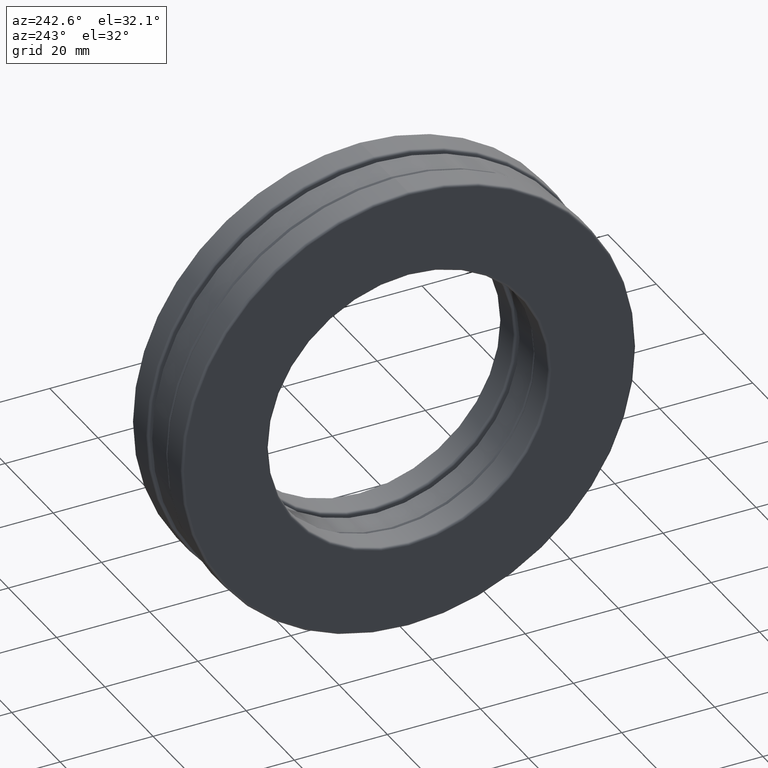
[diagram: clean part render]
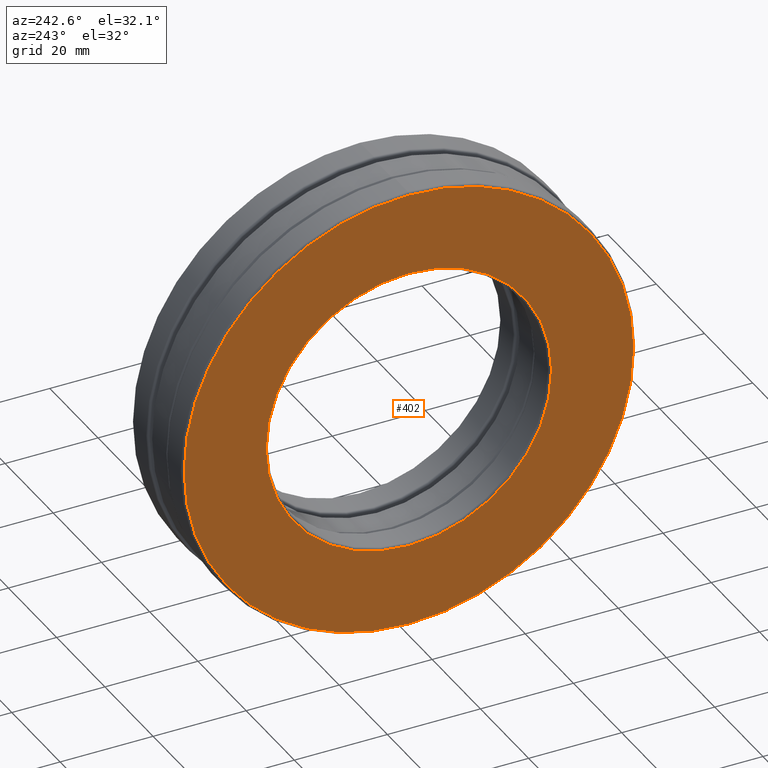
[diagram: same view with one face highlighted and labeled with its STEP entity id]
A machine part, auxiliary view. The second image highlights one B-rep face of the part: STEP entity #402.
In plain terms, the highlighted planar face has unit normal (1, 0, 0).
Its self-contained STEP definition (entity closure, byte-faithful):
#50 = AXIS2_PLACEMENT_3D ( 'NONE', #654, #657, #316 ) ;
#158 = DIRECTION ( 'NONE',  ( -1.000000000000000000, -0.0000000000000000000, -0.0000000000000000000 ) ) ;
#276 = CARTESIAN_POINT ( 'NONE',  ( -0.4059999999999998600, 0.0000000000000000000, 1.901875000000000600 ) ) ;
#316 = DIRECTION ( 'NONE',  ( 0.0000000000000000000, 0.0000000000000000000, 1.000000000000000000 ) ) ;
#328 = ORIENTED_EDGE ( 'NONE', *, *, #1439, .T. ) ;
#329 = AXIS2_PLACEMENT_3D ( 'NONE', #524, #1310, #527 ) ;
#337 = VERTEX_POINT ( 'NONE', #979 ) ;
#402 = ADVANCED_FACE ( 'NONE', ( #1332, #1202 ), #1083, .F. ) ;
#524 = CARTESIAN_POINT ( 'NONE',  ( -0.4059999999999998600, 0.0000000000000000000, 0.0000000000000000000 ) ) ;
#527 = DIRECTION ( 'NONE',  ( 0.0000000000000000000, 0.0000000000000000000, -1.000000000000000000 ) ) ;
#654 = CARTESIAN_POINT ( 'NONE',  ( -0.4059999999999998600, 0.0000000000000000000, 0.0000000000000000000 ) ) ;
#657 = DIRECTION ( 'NONE',  ( -1.000000000000000000, -0.0000000000000000000, -0.0000000000000000000 ) ) ;
#679 = AXIS2_PLACEMENT_3D ( 'NONE', #1307, #158, #1071 ) ;
#887 = EDGE_LOOP ( 'NONE', ( #328 ) ) ;
#979 = CARTESIAN_POINT ( 'NONE',  ( -0.4059999999999998600, 0.0000000000000000000, 1.207500000000000000 ) ) ;
#1071 = DIRECTION ( 'NONE',  ( 0.0000000000000000000, 0.0000000000000000000, 1.000000000000000000 ) ) ;
#1083 = PLANE ( 'NONE',  #329 ) ;
#1202 = FACE_OUTER_BOUND ( 'NONE', #887, .T. ) ;
#1295 = CIRCLE ( 'NONE', #50, 1.207500000000000000 ) ;
#1307 = CARTESIAN_POINT ( 'NONE',  ( -0.4059999999999998600, 0.0000000000000000000, 0.0000000000000000000 ) ) ;
#1310 = DIRECTION ( 'NONE',  ( 1.000000000000000000, 0.0000000000000000000, 0.0000000000000000000 ) ) ;
#1332 = FACE_BOUND ( 'NONE', #1457, .T. ) ;
#1346 = EDGE_CURVE ( 'NONE', #337, #337, #1295, .T. ) ;
#1351 = CIRCLE ( 'NONE', #679, 1.901875000000000600 ) ;
#1383 = VERTEX_POINT ( 'NONE', #276 ) ;
#1393 = ORIENTED_EDGE ( 'NONE', *, *, #1346, .F. ) ;
#1439 = EDGE_CURVE ( 'NONE', #1383, #1383, #1351, .T. ) ;
#1457 = EDGE_LOOP ( 'NONE', ( #1393 ) ) ;